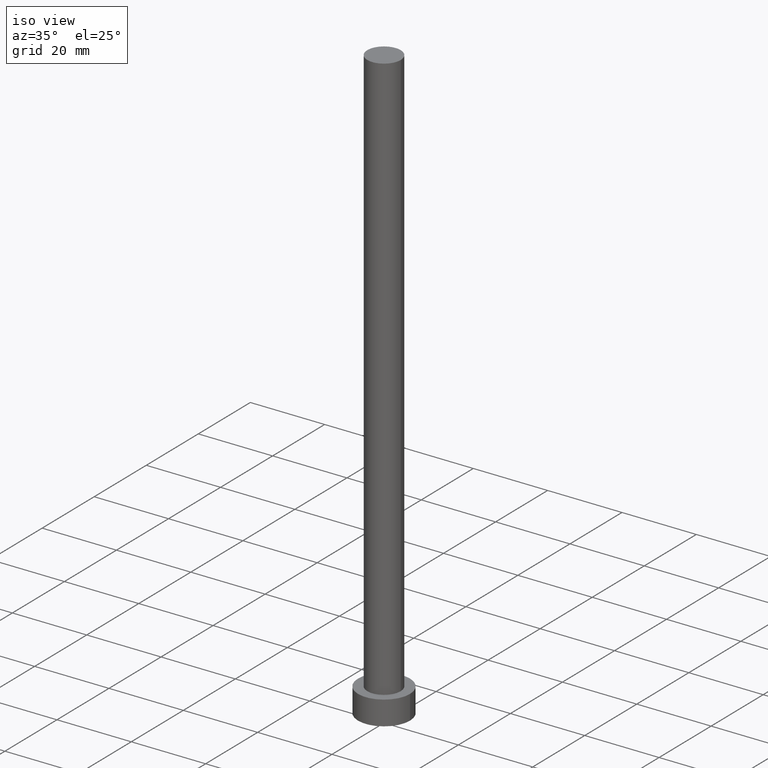
[diagram: clean part render]
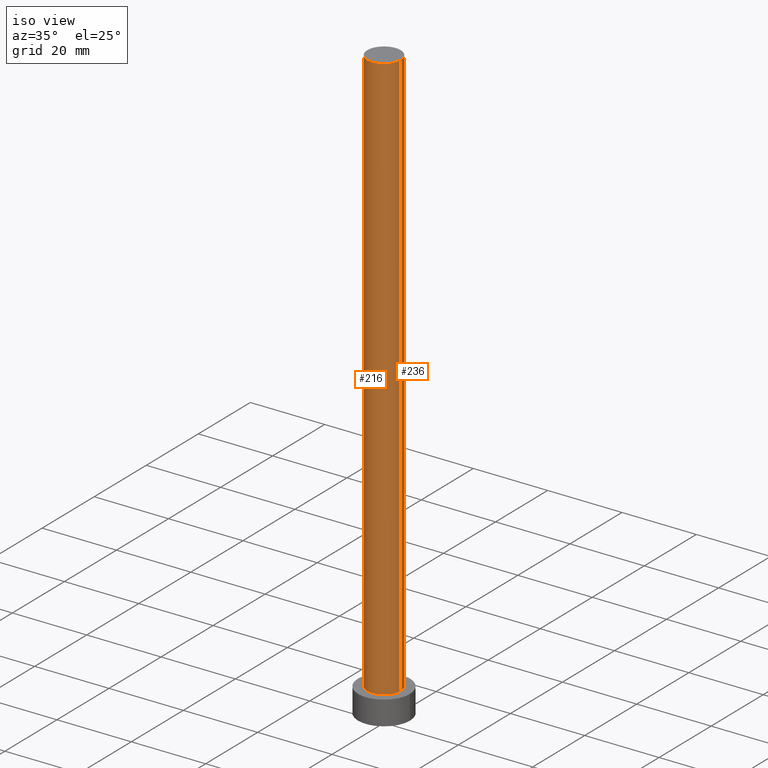
[diagram: same view with one multi-face feature highlighted, each face labeled with its STEP entity id]
A machine part, iso view. The highlighted faces form ONE feature: a constant-radius fillet chain: 2 tangent blend faces with common blend radius 4.5 mm. The faces share edges in the B-rep.
Their STEP definitions:
[1] entity #236 (Cylinder):
#11 = DIRECTION ( 'NONE',  ( 0.000000000000000000, 0.000000000000000000, 1.000000000000000000 ) ) ;
#20 = EDGE_CURVE ( 'NONE', #251, #183, #107, .T. ) ;
#27 = CARTESIAN_POINT ( 'NONE',  ( 0.000000000000000000, 0.000000000000000000, 160.0000000000000000 ) ) ;
#40 = EDGE_CURVE ( 'NONE', #168, #251, #203, .T. ) ;
#42 = CARTESIAN_POINT ( 'NONE',  ( -4.500000000000000888, 0.000000000000000000, 6.500000000000000000 ) ) ;
#46 = FACE_OUTER_BOUND ( 'NONE', #91, .T. ) ;
#48 = CARTESIAN_POINT ( 'NONE',  ( -4.500000000000000888, 0.000000000000000000, 160.0000000000000000 ) ) ;
#55 = CARTESIAN_POINT ( 'NONE',  ( 0.000000000000000000, 0.000000000000000000, 6.500000000000000000 ) ) ;
#57 = CARTESIAN_POINT ( 'NONE',  ( -4.500000000000000888, 0.000000000000000000, 160.0000000000000000 ) ) ;
#63 = CARTESIAN_POINT ( 'NONE',  ( 0.000000000000000000, 0.000000000000000000, 160.0000000000000000 ) ) ;
#68 = ORIENTED_EDGE ( 'NONE', *, *, #250, .F. ) ;
#91 = EDGE_LOOP ( 'NONE', ( #94, #129, #108, #68 ) ) ;
#94 = ORIENTED_EDGE ( 'NONE', *, *, #130, .F. ) ;
#95 = CIRCLE ( 'NONE', #220, 4.500000000000000888 ) ;
#99 = DIRECTION ( 'NONE',  ( 0.000000000000000000, 0.000000000000000000, 1.000000000000000000 ) ) ;
#105 = DIRECTION ( 'NONE',  ( -1.000000000000000000, 0.000000000000000000, 0.000000000000000000 ) ) ;
#107 = CIRCLE ( 'NONE', #234, 4.500000000000000888 ) ;
#108 = ORIENTED_EDGE ( 'NONE', *, *, #20, .T. ) ;
#110 = VERTEX_POINT ( 'NONE', #57 ) ;
#122 = CARTESIAN_POINT ( 'NONE',  ( 4.500000000000000888, 5.510910596163089556E-16, 160.0000000000000000 ) ) ;
#124 = DIRECTION ( 'NONE',  ( -0.000000000000000000, -0.000000000000000000, -1.000000000000000000 ) ) ;
#128 = DIRECTION ( 'NONE',  ( -0.000000000000000000, -0.000000000000000000, -1.000000000000000000 ) ) ;
#129 = ORIENTED_EDGE ( 'NONE', *, *, #40, .T. ) ;
#130 = EDGE_CURVE ( 'NONE', #168, #110, #95, .T. ) ;
#138 = DIRECTION ( 'NONE',  ( 1.000000000000000000, 0.000000000000000000, 0.000000000000000000 ) ) ;
#145 = AXIS2_PLACEMENT_3D ( 'NONE', #27, #124, #105 ) ;
#155 = CARTESIAN_POINT ( 'NONE',  ( 4.500000000000000888, 5.510910596163089556E-16, 160.0000000000000000 ) ) ;
#157 = VECTOR ( 'NONE', #230, 1000.000000000000000 ) ;
#168 = VERTEX_POINT ( 'NONE', #122 ) ;
#170 = DIRECTION ( 'NONE',  ( 1.000000000000000000, 0.000000000000000000, 0.000000000000000000 ) ) ;
#183 = VERTEX_POINT ( 'NONE', #42 ) ;
#195 = CARTESIAN_POINT ( 'NONE',  ( 4.500000000000000888, 5.510910596163089556E-16, 6.500000000000000000 ) ) ;
#197 = LINE ( 'NONE', #48, #245 ) ;
#203 = LINE ( 'NONE', #155, #157 ) ;
#218 = CYLINDRICAL_SURFACE ( 'NONE', #145, 4.500000000000000888 ) ;
#220 = AXIS2_PLACEMENT_3D ( 'NONE', #63, #99, #138 ) ;
#230 = DIRECTION ( 'NONE',  ( -0.000000000000000000, -0.000000000000000000, -1.000000000000000000 ) ) ;
#234 = AXIS2_PLACEMENT_3D ( 'NONE', #55, #11, #170 ) ;
#236 = ADVANCED_FACE ( 'NONE', ( #46 ), #218, .T. ) ;
#245 = VECTOR ( 'NONE', #128, 1000.000000000000000 ) ;
#250 = EDGE_CURVE ( 'NONE', #110, #183, #197, .T. ) ;
#251 = VERTEX_POINT ( 'NONE', #195 ) ;
[2] entity #216 (Cylinder):
#3 = DIRECTION ( 'NONE',  ( -0.000000000000000000, -0.000000000000000000, -1.000000000000000000 ) ) ;
#6 = CARTESIAN_POINT ( 'NONE',  ( 0.000000000000000000, 0.000000000000000000, 160.0000000000000000 ) ) ;
#9 = ORIENTED_EDGE ( 'NONE', *, *, #232, .T. ) ;
#18 = AXIS2_PLACEMENT_3D ( 'NONE', #174, #3, #67 ) ;
#30 = ORIENTED_EDGE ( 'NONE', *, *, #40, .F. ) ;
#40 = EDGE_CURVE ( 'NONE', #168, #251, #203, .T. ) ;
#42 = CARTESIAN_POINT ( 'NONE',  ( -4.500000000000000888, 0.000000000000000000, 6.500000000000000000 ) ) ;
#48 = CARTESIAN_POINT ( 'NONE',  ( -4.500000000000000888, 0.000000000000000000, 160.0000000000000000 ) ) ;
#52 = ORIENTED_EDGE ( 'NONE', *, *, #179, .F. ) ;
#57 = CARTESIAN_POINT ( 'NONE',  ( -4.500000000000000888, 0.000000000000000000, 160.0000000000000000 ) ) ;
#66 = DIRECTION ( 'NONE',  ( 0.000000000000000000, 0.000000000000000000, 1.000000000000000000 ) ) ;
#67 = DIRECTION ( 'NONE',  ( -1.000000000000000000, 0.000000000000000000, 0.000000000000000000 ) ) ;
#110 = VERTEX_POINT ( 'NONE', #57 ) ;
#122 = CARTESIAN_POINT ( 'NONE',  ( 4.500000000000000888, 5.510910596163089556E-16, 160.0000000000000000 ) ) ;
#128 = DIRECTION ( 'NONE',  ( -0.000000000000000000, -0.000000000000000000, -1.000000000000000000 ) ) ;
#147 = CARTESIAN_POINT ( 'NONE',  ( 0.000000000000000000, 0.000000000000000000, 6.500000000000000000 ) ) ;
#155 = CARTESIAN_POINT ( 'NONE',  ( 4.500000000000000888, 5.510910596163089556E-16, 160.0000000000000000 ) ) ;
#157 = VECTOR ( 'NONE', #230, 1000.000000000000000 ) ;
#159 = DIRECTION ( 'NONE',  ( 1.000000000000000000, 0.000000000000000000, 0.000000000000000000 ) ) ;
#160 = CYLINDRICAL_SURFACE ( 'NONE', #18, 4.500000000000000888 ) ;
#164 = AXIS2_PLACEMENT_3D ( 'NONE', #6, #66, #159 ) ;
#168 = VERTEX_POINT ( 'NONE', #122 ) ;
#174 = CARTESIAN_POINT ( 'NONE',  ( 0.000000000000000000, 0.000000000000000000, 160.0000000000000000 ) ) ;
#175 = DIRECTION ( 'NONE',  ( 1.000000000000000000, 0.000000000000000000, 0.000000000000000000 ) ) ;
#179 = EDGE_CURVE ( 'NONE', #110, #168, #229, .T. ) ;
#183 = VERTEX_POINT ( 'NONE', #42 ) ;
#185 = CIRCLE ( 'NONE', #213, 4.500000000000000888 ) ;
#195 = CARTESIAN_POINT ( 'NONE',  ( 4.500000000000000888, 5.510910596163089556E-16, 6.500000000000000000 ) ) ;
#197 = LINE ( 'NONE', #48, #245 ) ;
#203 = LINE ( 'NONE', #155, #157 ) ;
#213 = AXIS2_PLACEMENT_3D ( 'NONE', #147, #215, #175 ) ;
#215 = DIRECTION ( 'NONE',  ( 0.000000000000000000, 0.000000000000000000, 1.000000000000000000 ) ) ;
#216 = ADVANCED_FACE ( 'NONE', ( #238 ), #160, .T. ) ;
#222 = EDGE_LOOP ( 'NONE', ( #30, #52, #243, #9 ) ) ;
#229 = CIRCLE ( 'NONE', #164, 4.500000000000000888 ) ;
#230 = DIRECTION ( 'NONE',  ( -0.000000000000000000, -0.000000000000000000, -1.000000000000000000 ) ) ;
#232 = EDGE_CURVE ( 'NONE', #183, #251, #185, .T. ) ;
#238 = FACE_OUTER_BOUND ( 'NONE', #222, .T. ) ;
#243 = ORIENTED_EDGE ( 'NONE', *, *, #250, .T. ) ;
#245 = VECTOR ( 'NONE', #128, 1000.000000000000000 ) ;
#250 = EDGE_CURVE ( 'NONE', #110, #183, #197, .T. ) ;
#251 = VERTEX_POINT ( 'NONE', #195 ) ;